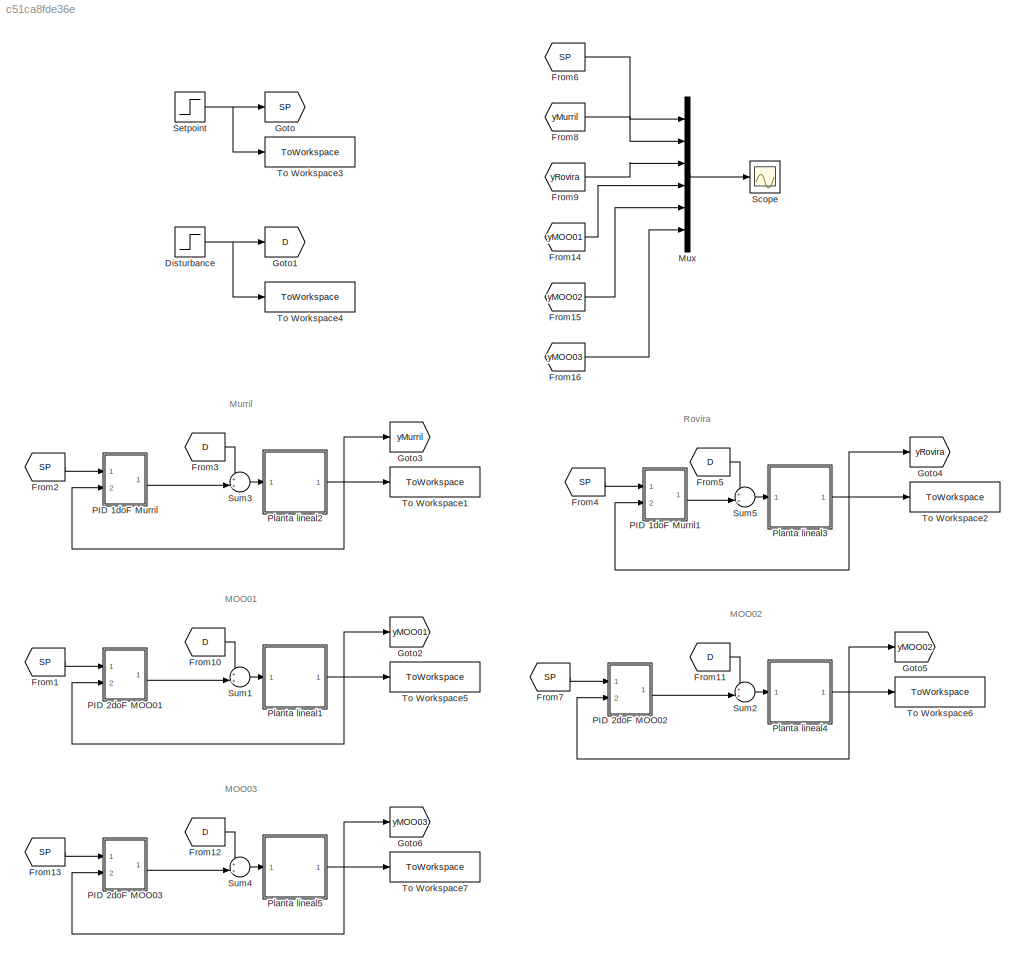
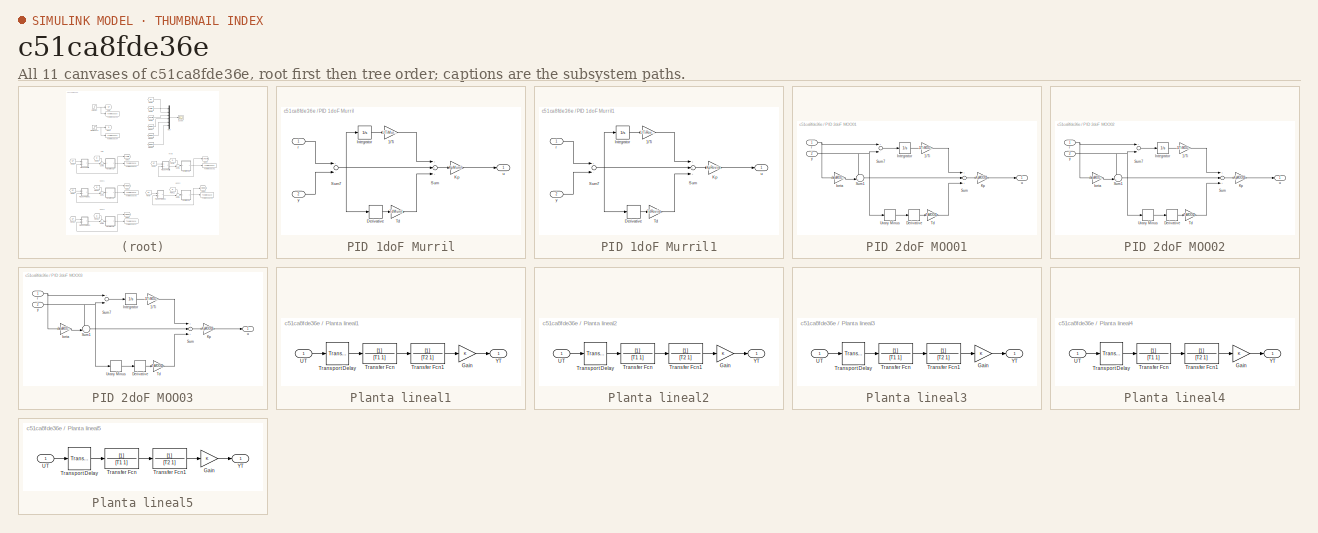
[diagram: thumbnail index - all 11 canvases of the model, root first then tree order]
MODEL slx_c51ca8fde36e
KIND model
CONFIG AbsTol = auto
CONFIG EnableMultiTasking = off
CONFIG FixedStep = 0.01
CONFIG MaxStep = 0.01
CONFIG MinStep = auto
CONFIG RelTol = 1e-3
CONFIG SampleTimeConstraint = Unconstrained
CONFIG Solver = ode4
CONFIG SolverName = ode4
CONFIG StartTime = 0.0
CONFIG StopTime = 2000
BLOCK [Step] Disturbance
  SampleTime = 0
  Time = 1000
BLOCK [From] From1
  GotoTag = SP
BLOCK [From] From10
  GotoTag = D
BLOCK [From] From11
  GotoTag = D
BLOCK [From] From12
  GotoTag = D
BLOCK [From] From13
  GotoTag = SP
BLOCK [From] From14
  GotoTag = yMOO01
BLOCK [From] From15
  GotoTag = yMOO02
BLOCK [From] From16
  GotoTag = yMOO03
BLOCK [From] From2
  GotoTag = SP
BLOCK [From] From3
  GotoTag = D
BLOCK [From] From4
  GotoTag = SP
BLOCK [From] From5
  GotoTag = D
BLOCK [From] From6
  GotoTag = SP
BLOCK [From] From7
  GotoTag = SP
BLOCK [From] From8
  GotoTag = yMurril
BLOCK [From] From9
  GotoTag = yRovira
BLOCK [Goto] Goto
  GotoTag = SP
BLOCK [Goto] Goto1
  GotoTag = D
BLOCK [Goto] Goto2
  GotoTag = yMOO01
BLOCK [Goto] Goto3
  GotoTag = yMurril
BLOCK [Goto] Goto4
  GotoTag = yRovira
BLOCK [Goto] Goto5
  GotoTag = yMOO02
BLOCK [Goto] Goto6
  GotoTag = yMOO03
BLOCK [Mux] Mux
  DisplayOption = bar
  Inputs = 6
  Ports = [6, 1]
BLOCK [SubSystem] PID 1doF Murril
  Ports = [2, 1]
  RequestExecContextInheritance = off
BLOCK [Gain] PID 1doF Murril/1//Ti
  Gain = 1/TiMurril
  OutDataTypeStr = Inherit: Inherit via internal rule
  ParamDataTypeStr = Inherit: Inherit via internal rule
  SaturateOnIntegerOverflow = off
BLOCK [Derivative] PID 1doF Murril/Derivative
BLOCK [Integrator] PID 1doF Murril/Integrator
  Ports = [1, 1]
BLOCK [Gain] PID 1doF Murril/Kp
  Gain = KpMurril
  OutDataTypeStr = Inherit: Inherit via internal rule
  ParamDataTypeStr = Inherit: Inherit via internal rule
  SaturateOnIntegerOverflow = off
BLOCK [Sum] PID 1doF Murril/Sum
  InputSameDT = off
  Inputs = +++
  OutDataTypeStr = Inherit: Inherit via internal rule
  Ports = [3, 1]
  SaturateOnIntegerOverflow = off
BLOCK [Sum] PID 1doF Murril/Sum7
  InputSameDT = off
  Inputs = +-
  OutDataTypeStr = Inherit: Inherit via internal rule
  Ports = [2, 1]
  SaturateOnIntegerOverflow = off
BLOCK [Gain] PID 1doF Murril/Td
  Gain = TdMurril
  OutDataTypeStr = Inherit: Inherit via internal rule
  ParamDataTypeStr = Inherit: Inherit via internal rule
  SaturateOnIntegerOverflow = off
BLOCK [Inport] PID 1doF Murril/r
  IconDisplay = Port number
BLOCK [Outport] PID 1doF Murril/u
  IconDisplay = Port number
BLOCK [Inport] PID 1doF Murril/y
  IconDisplay = Port number
  Port = 2
BLOCK [SubSystem] PID 1doF Murril1
  Ports = [2, 1]
  RequestExecContextInheritance = off
BLOCK [Gain] PID 1doF Murril1/1//Ti
  Gain = 1/TiRovira
  OutDataTypeStr = Inherit: Inherit via internal rule
  ParamDataTypeStr = Inherit: Inherit via internal rule
  SaturateOnIntegerOverflow = off
BLOCK [Derivative] PID 1doF Murril1/Derivative
BLOCK [Integrator] PID 1doF Murril1/Integrator
  Ports = [1, 1]
BLOCK [Gain] PID 1doF Murril1/Kp
  Gain = KpRovira
  OutDataTypeStr = Inherit: Inherit via internal rule
  ParamDataTypeStr = Inherit: Inherit via internal rule
  SaturateOnIntegerOverflow = off
BLOCK [Sum] PID 1doF Murril1/Sum
  InputSameDT = off
  Inputs = +++
  OutDataTypeStr = Inherit: Inherit via internal rule
  Ports = [3, 1]
  SaturateOnIntegerOverflow = off
BLOCK [Sum] PID 1doF Murril1/Sum7
  InputSameDT = off
  Inputs = +-
  OutDataTypeStr = Inherit: Inherit via internal rule
  Ports = [2, 1]
  SaturateOnIntegerOverflow = off
BLOCK [Gain] PID 1doF Murril1/Td
  Gain = TdRovira
  OutDataTypeStr = Inherit: Inherit via internal rule
  ParamDataTypeStr = Inherit: Inherit via internal rule
  SaturateOnIntegerOverflow = off
BLOCK [Inport] PID 1doF Murril1/r
  IconDisplay = Port number
BLOCK [Outport] PID 1doF Murril1/u
  IconDisplay = Port number
BLOCK [Inport] PID 1doF Murril1/y
  IconDisplay = Port number
  Port = 2
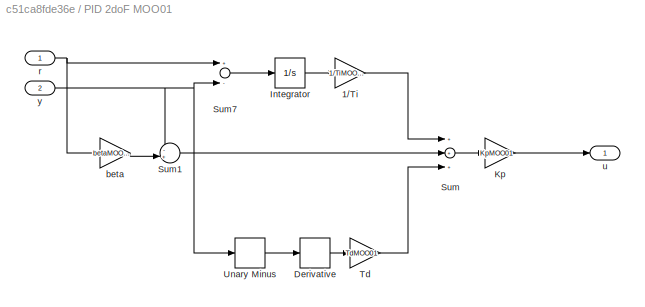
BLOCK [SubSystem] PID 2doF MOO01
  Ports = [2, 1]
  RequestExecContextInheritance = off
BLOCK [Gain] PID 2doF MOO01/1//Ti
  Gain = 1/TiMOO01
  OutDataTypeStr = Inherit: Inherit via internal rule
  ParamDataTypeStr = Inherit: Inherit via internal rule
  SaturateOnIntegerOverflow = off
BLOCK [Derivative] PID 2doF MOO01/Derivative
BLOCK [Integrator] PID 2doF MOO01/Integrator
  Ports = [1, 1]
BLOCK [Gain] PID 2doF MOO01/Kp
  Gain = KpMOO01
  OutDataTypeStr = Inherit: Inherit via internal rule
  ParamDataTypeStr = Inherit: Inherit via internal rule
  SaturateOnIntegerOverflow = off
BLOCK [Sum] PID 2doF MOO01/Sum
  InputSameDT = off
  Inputs = +++
  OutDataTypeStr = Inherit: Inherit via internal rule
  Ports = [3, 1]
  SaturateOnIntegerOverflow = off
BLOCK [Sum] PID 2doF MOO01/Sum1
  IconShape = round
  InputSameDT = off
  Inputs = -+|
  OutDataTypeStr = Inherit: Inherit via internal rule
  Ports = [2, 1]
  SaturateOnIntegerOverflow = off
BLOCK [Sum] PID 2doF MOO01/Sum7
  InputSameDT = off
  Inputs = +-
  OutDataTypeStr = Inherit: Inherit via internal rule
  Ports = [2, 1]
  SaturateOnIntegerOverflow = off
BLOCK [Gain] PID 2doF MOO01/Td
  Gain = TdMOO01
  OutDataTypeStr = Inherit: Inherit via internal rule
  ParamDataTypeStr = Inherit: Inherit via internal rule
  SaturateOnIntegerOverflow = off
BLOCK [UnaryMinus] PID 2doF MOO01/Unary Minus
BLOCK [Gain] PID 2doF MOO01/beta
  Gain = betaMOO01
  OutDataTypeStr = Inherit: Inherit via internal rule
  ParamDataTypeStr = Inherit: Inherit via internal rule
  SaturateOnIntegerOverflow = off
BLOCK [Inport] PID 2doF MOO01/r
  IconDisplay = Port number
BLOCK [Outport] PID 2doF MOO01/u
  IconDisplay = Port number
BLOCK [Inport] PID 2doF MOO01/y
  IconDisplay = Port number
  Port = 2
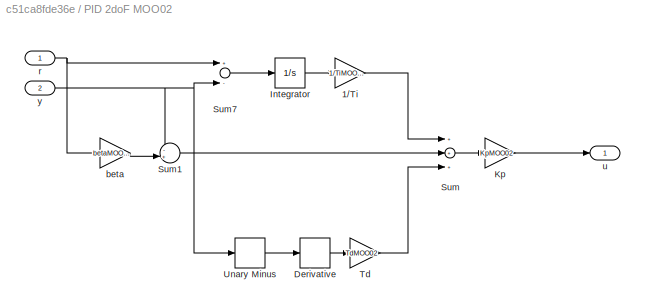
BLOCK [SubSystem] PID 2doF MOO02
  Ports = [2, 1]
  RequestExecContextInheritance = off
BLOCK [Gain] PID 2doF MOO02/1//Ti
  Gain = 1/TiMOO02
  OutDataTypeStr = Inherit: Inherit via internal rule
  ParamDataTypeStr = Inherit: Inherit via internal rule
  SaturateOnIntegerOverflow = off
BLOCK [Derivative] PID 2doF MOO02/Derivative
BLOCK [Integrator] PID 2doF MOO02/Integrator
  Ports = [1, 1]
BLOCK [Gain] PID 2doF MOO02/Kp
  Gain = KpMOO02
  OutDataTypeStr = Inherit: Inherit via internal rule
  ParamDataTypeStr = Inherit: Inherit via internal rule
  SaturateOnIntegerOverflow = off
BLOCK [Sum] PID 2doF MOO02/Sum
  InputSameDT = off
  Inputs = +++
  OutDataTypeStr = Inherit: Inherit via internal rule
  Ports = [3, 1]
  SaturateOnIntegerOverflow = off
BLOCK [Sum] PID 2doF MOO02/Sum1
  IconShape = round
  InputSameDT = off
  Inputs = -+|
  OutDataTypeStr = Inherit: Inherit via internal rule
  Ports = [2, 1]
  SaturateOnIntegerOverflow = off
BLOCK [Sum] PID 2doF MOO02/Sum7
  InputSameDT = off
  Inputs = +-
  OutDataTypeStr = Inherit: Inherit via internal rule
  Ports = [2, 1]
  SaturateOnIntegerOverflow = off
BLOCK [Gain] PID 2doF MOO02/Td
  Gain = TdMOO02
  OutDataTypeStr = Inherit: Inherit via internal rule
  ParamDataTypeStr = Inherit: Inherit via internal rule
  SaturateOnIntegerOverflow = off
BLOCK [UnaryMinus] PID 2doF MOO02/Unary Minus
BLOCK [Gain] PID 2doF MOO02/beta
  Gain = betaMOO02
  OutDataTypeStr = Inherit: Inherit via internal rule
  ParamDataTypeStr = Inherit: Inherit via internal rule
  SaturateOnIntegerOverflow = off
BLOCK [Inport] PID 2doF MOO02/r
  IconDisplay = Port number
BLOCK [Outport] PID 2doF MOO02/u
  IconDisplay = Port number
BLOCK [Inport] PID 2doF MOO02/y
  IconDisplay = Port number
  Port = 2
BLOCK [SubSystem] PID 2doF MOO03
  Ports = [2, 1]
  RequestExecContextInheritance = off
BLOCK [Gain] PID 2doF MOO03/1//Ti
  Gain = 1/TiMOO03
  OutDataTypeStr = Inherit: Inherit via internal rule
  ParamDataTypeStr = Inherit: Inherit via internal rule
  SaturateOnIntegerOverflow = off
BLOCK [Derivative] PID 2doF MOO03/Derivative
BLOCK [Integrator] PID 2doF MOO03/Integrator
  Ports = [1, 1]
BLOCK [Gain] PID 2doF MOO03/Kp
  Gain = KpMOO03
  OutDataTypeStr = Inherit: Inherit via internal rule
  ParamDataTypeStr = Inherit: Inherit via internal rule
  SaturateOnIntegerOverflow = off
BLOCK [Sum] PID 2doF MOO03/Sum
  InputSameDT = off
  Inputs = +++
  OutDataTypeStr = Inherit: Inherit via internal rule
  Ports = [3, 1]
  SaturateOnIntegerOverflow = off
BLOCK [Sum] PID 2doF MOO03/Sum1
  IconShape = round
  InputSameDT = off
  Inputs = -+|
  OutDataTypeStr = Inherit: Inherit via internal rule
  Ports = [2, 1]
  SaturateOnIntegerOverflow = off
BLOCK [Sum] PID 2doF MOO03/Sum7
  InputSameDT = off
  Inputs = +-
  OutDataTypeStr = Inherit: Inherit via internal rule
  Ports = [2, 1]
  SaturateOnIntegerOverflow = off
BLOCK [Gain] PID 2doF MOO03/Td
  Gain = TdMOO03
  OutDataTypeStr = Inherit: Inherit via internal rule
  ParamDataTypeStr = Inherit: Inherit via internal rule
  SaturateOnIntegerOverflow = off
BLOCK [UnaryMinus] PID 2doF MOO03/Unary Minus
BLOCK [Gain] PID 2doF MOO03/beta
  Gain = betaMOO03
  OutDataTypeStr = Inherit: Inherit via internal rule
  ParamDataTypeStr = Inherit: Inherit via internal rule
  SaturateOnIntegerOverflow = off
BLOCK [Inport] PID 2doF MOO03/r
  IconDisplay = Port number
BLOCK [Outport] PID 2doF MOO03/u
  IconDisplay = Port number
BLOCK [Inport] PID 2doF MOO03/y
  IconDisplay = Port number
  Port = 2
BLOCK [SubSystem] Planta lineal1
  Ports = [1, 1]
  RequestExecContextInheritance = off
BLOCK [Gain] Planta lineal1/Gain
  Gain = K
  OutDataTypeStr = Inherit: Inherit via internal rule
  ParamDataTypeStr = Inherit: Inherit via internal rule
  SaturateOnIntegerOverflow = off
BLOCK [TransferFcn] Planta lineal1/Transfer Fcn
  Denominator = [T1 1]
BLOCK [TransferFcn] Planta lineal1/Transfer Fcn1
  Denominator = [T2 1]
BLOCK [TransportDelay] Planta lineal1/Transport Delay
  BufferSize = 4096
  DelayTime = L
  Ports = [1, 1]
BLOCK [Inport] Planta lineal1/UT
  IconDisplay = Port number
BLOCK [Outport] Planta lineal1/YT
  IconDisplay = Port number
BLOCK [SubSystem] Planta lineal2
  Ports = [1, 1]
  RequestExecContextInheritance = off
BLOCK [Gain] Planta lineal2/Gain
  Gain = K
  OutDataTypeStr = Inherit: Inherit via internal rule
  ParamDataTypeStr = Inherit: Inherit via internal rule
  SaturateOnIntegerOverflow = off
BLOCK [TransferFcn] Planta lineal2/Transfer Fcn
  Denominator = [T1 1]
BLOCK [TransferFcn] Planta lineal2/Transfer Fcn1
  Denominator = [T2 1]
BLOCK [TransportDelay] Planta lineal2/Transport Delay
  BufferSize = 4096
  DelayTime = L
  Ports = [1, 1]
BLOCK [Inport] Planta lineal2/UT
  IconDisplay = Port number
BLOCK [Outport] Planta lineal2/YT
  IconDisplay = Port number
BLOCK [SubSystem] Planta lineal3
  Ports = [1, 1]
  RequestExecContextInheritance = off
BLOCK [Gain] Planta lineal3/Gain
  Gain = K
  OutDataTypeStr = Inherit: Inherit via internal rule
  ParamDataTypeStr = Inherit: Inherit via internal rule
  SaturateOnIntegerOverflow = off
BLOCK [TransferFcn] Planta lineal3/Transfer Fcn
  Denominator = [T1 1]
BLOCK [TransferFcn] Planta lineal3/Transfer Fcn1
  Denominator = [T2 1]
BLOCK [TransportDelay] Planta lineal3/Transport Delay
  BufferSize = 4096
  DelayTime = L
  Ports = [1, 1]
BLOCK [Inport] Planta lineal3/UT
  IconDisplay = Port number
BLOCK [Outport] Planta lineal3/YT
  IconDisplay = Port number
BLOCK [SubSystem] Planta lineal4
  Ports = [1, 1]
  RequestExecContextInheritance = off
BLOCK [Gain] Planta lineal4/Gain
  Gain = K
  OutDataTypeStr = Inherit: Inherit via internal rule
  ParamDataTypeStr = Inherit: Inherit via internal rule
  SaturateOnIntegerOverflow = off
BLOCK [TransferFcn] Planta lineal4/Transfer Fcn
  Denominator = [T1 1]
BLOCK [TransferFcn] Planta lineal4/Transfer Fcn1
  Denominator = [T2 1]
BLOCK [TransportDelay] Planta lineal4/Transport Delay
  BufferSize = 4096
  DelayTime = L
  Ports = [1, 1]
BLOCK [Inport] Planta lineal4/UT
  IconDisplay = Port number
BLOCK [Outport] Planta lineal4/YT
  IconDisplay = Port number
BLOCK [SubSystem] Planta lineal5
  Ports = [1, 1]
  RequestExecContextInheritance = off
BLOCK [Gain] Planta lineal5/Gain
  Gain = K
  OutDataTypeStr = Inherit: Inherit via internal rule
  ParamDataTypeStr = Inherit: Inherit via internal rule
  SaturateOnIntegerOverflow = off
BLOCK [TransferFcn] Planta lineal5/Transfer Fcn
  Denominator = [T1 1]
BLOCK [TransferFcn] Planta lineal5/Transfer Fcn1
  Denominator = [T2 1]
BLOCK [TransportDelay] Planta lineal5/Transport Delay
  BufferSize = 4096
  DelayTime = L
  Ports = [1, 1]
BLOCK [Inport] Planta lineal5/UT
  IconDisplay = Port number
BLOCK [Outport] Planta lineal5/YT
  IconDisplay = Port number
BLOCK [Scope] Scope
  Floating = off
  NumInputPorts = 1
  Ports = [1]
  ScopeSpecificationString = Simulink.scopes.TimeScopeBlockCfg('CurrentConfiguration', extmgr.ConfigurationSet(extmgr.Configuration('Core','General UI',true),extmgr.Configuration('Core','Source UI',true),extmgr.Configuration('Sources','WiredSimulink',true),extmgr.Configuration('Visuals','Time Domain',true,'SerializedDisplays',{struct('MinYLimReal','-0.04524','MaxYLimReal','0.17055','YLabelReal','','MinYLimMag','0.00000','MaxY...<+1464ch>
BLOCK [Step] Setpoint
  SampleTime = 0
  Time = 10
BLOCK [Sum] Sum1
  IconShape = round
  InputSameDT = off
  Inputs = ++|
  OutDataTypeStr = Inherit: Inherit via internal rule
  Ports = [2, 1]
  SaturateOnIntegerOverflow = off
BLOCK [Sum] Sum2
  IconShape = round
  InputSameDT = off
  Inputs = ++|
  OutDataTypeStr = Inherit: Inherit via internal rule
  Ports = [2, 1]
  SaturateOnIntegerOverflow = off
BLOCK [Sum] Sum3
  IconShape = round
  InputSameDT = off
  Inputs = ++|
  OutDataTypeStr = Inherit: Inherit via internal rule
  Ports = [2, 1]
  SaturateOnIntegerOverflow = off
BLOCK [Sum] Sum4
  IconShape = round
  InputSameDT = off
  Inputs = ++|
  OutDataTypeStr = Inherit: Inherit via internal rule
  Ports = [2, 1]
  SaturateOnIntegerOverflow = off
BLOCK [Sum] Sum5
  IconShape = round
  InputSameDT = off
  Inputs = ++|
  OutDataTypeStr = Inherit: Inherit via internal rule
  Ports = [2, 1]
  SaturateOnIntegerOverflow = off
BLOCK [ToWorkspace] To Workspace1
  FixptAsFi = on
  MaxDataPoints = inf
  Ports = [1]
  SampleTime = 0.01
  SaveFormat = Timeseries
  VariableName = Murril
BLOCK [ToWorkspace] To Workspace2
  FixptAsFi = on
  MaxDataPoints = inf
  Ports = [1]
  SampleTime = -1
  SaveFormat = Timeseries
  VariableName = Rovira
BLOCK [ToWorkspace] To Workspace3
  FixptAsFi = on
  MaxDataPoints = inf
  Ports = [1]
  SampleTime = 0.01
  SaveFormat = Timeseries
  VariableName = SP
BLOCK [ToWorkspace] To Workspace4
  FixptAsFi = on
  MaxDataPoints = inf
  Ports = [1]
  SampleTime = 0.01
  SaveFormat = Timeseries
  VariableName = D
BLOCK [ToWorkspace] To Workspace5
  FixptAsFi = on
  MaxDataPoints = inf
  Ports = [1]
  SampleTime = 0.01
  SaveFormat = Timeseries
  VariableName = MOO011
BLOCK [ToWorkspace] To Workspace6
  FixptAsFi = on
  MaxDataPoints = inf
  Ports = [1]
  SampleTime = 0.01
  SaveFormat = Timeseries
  VariableName = MOO02
BLOCK [ToWorkspace] To Workspace7
  FixptAsFi = on
  MaxDataPoints = inf
  Ports = [1]
  SampleTime = 0.01
  SaveFormat = Timeseries
  VariableName = MOO03
ANNOTATION (root): Murril
ANNOTATION (root): Rovira
ANNOTATION (root): MOO01
ANNOTATION (root): MOO02
ANNOTATION (root): MOO03
NET Disturbance:1 -> Goto1:1, To Workspace4:1
LINE From10:1 -> Sum1:1
LINE From11:1 -> Sum2:1
LINE From12:1 -> Sum4:1
LINE From13:1 -> PID 2doF MOO03:1
LINE From14:1 -> Mux:4
LINE From15:1 -> Mux:5
LINE From16:1 -> Mux:6
LINE From1:1 -> PID 2doF MOO01:1
LINE From2:1 -> PID 1doF Murril:1
LINE From3:1 -> Sum3:1
LINE From4:1 -> PID 1doF Murril1:1
LINE From5:1 -> Sum5:1
LINE From6:1 -> Mux:1
LINE From7:1 -> PID 2doF MOO02:1
LINE From8:1 -> Mux:2
LINE From9:1 -> Mux:3
LINE Mux:1 -> Scope:1
LINE PID 1doF Murril/1//Ti:1 -> PID 1doF Murril/Sum:1
LINE PID 1doF Murril/Derivative:1 -> PID 1doF Murril/Td:1
LINE PID 1doF Murril/Integrator:1 -> PID 1doF Murril/1//Ti:1
LINE PID 1doF Murril/Kp:1 -> PID 1doF Murril/u:1
NET PID 1doF Murril/Sum7:1 -> PID 1doF Murril/Derivative:1, PID 1doF Murril/Integrator:1, PID 1doF Murril/Sum:2
LINE PID 1doF Murril/Sum:1 -> PID 1doF Murril/Kp:1
LINE PID 1doF Murril/Td:1 -> PID 1doF Murril/Sum:3
LINE PID 1doF Murril/r:1 -> PID 1doF Murril/Sum7:1
LINE PID 1doF Murril/y:1 -> PID 1doF Murril/Sum7:2
LINE PID 1doF Murril1/1//Ti:1 -> PID 1doF Murril1/Sum:1
LINE PID 1doF Murril1/Derivative:1 -> PID 1doF Murril1/Td:1
LINE PID 1doF Murril1/Integrator:1 -> PID 1doF Murril1/1//Ti:1
LINE PID 1doF Murril1/Kp:1 -> PID 1doF Murril1/u:1
NET PID 1doF Murril1/Sum7:1 -> PID 1doF Murril1/Derivative:1, PID 1doF Murril1/Integrator:1, PID 1doF Murril1/Sum:2
LINE PID 1doF Murril1/Sum:1 -> PID 1doF Murril1/Kp:1
LINE PID 1doF Murril1/Td:1 -> PID 1doF Murril1/Sum:3
LINE PID 1doF Murril1/r:1 -> PID 1doF Murril1/Sum7:1
LINE PID 1doF Murril1/y:1 -> PID 1doF Murril1/Sum7:2
LINE PID 1doF Murril1:1 -> Sum5:2
LINE PID 1doF Murril:1 -> Sum3:2
LINE PID 2doF MOO01/1//Ti:1 -> PID 2doF MOO01/Sum:1
LINE PID 2doF MOO01/Derivative:1 -> PID 2doF MOO01/Td:1
LINE PID 2doF MOO01/Integrator:1 -> PID 2doF MOO01/1//Ti:1
LINE PID 2doF MOO01/Kp:1 -> PID 2doF MOO01/u:1
LINE PID 2doF MOO01/Sum1:1 -> PID 2doF MOO01/Sum:2
LINE PID 2doF MOO01/Sum7:1 -> PID 2doF MOO01/Integrator:1
LINE PID 2doF MOO01/Sum:1 -> PID 2doF MOO01/Kp:1
LINE PID 2doF MOO01/Td:1 -> PID 2doF MOO01/Sum:3
LINE PID 2doF MOO01/Unary Minus:1 -> PID 2doF MOO01/Derivative:1
LINE PID 2doF MOO01/beta:1 -> PID 2doF MOO01/Sum1:2
NET PID 2doF MOO01/r:1 -> PID 2doF MOO01/Sum7:1, PID 2doF MOO01/beta:1
NET PID 2doF MOO01/y:1 -> PID 2doF MOO01/Sum1:1, PID 2doF MOO01/Sum7:2, PID 2doF MOO01/Unary Minus:1
LINE PID 2doF MOO01:1 -> Sum1:2
LINE PID 2doF MOO02/1//Ti:1 -> PID 2doF MOO02/Sum:1
LINE PID 2doF MOO02/Derivative:1 -> PID 2doF MOO02/Td:1
LINE PID 2doF MOO02/Integrator:1 -> PID 2doF MOO02/1//Ti:1
LINE PID 2doF MOO02/Kp:1 -> PID 2doF MOO02/u:1
LINE PID 2doF MOO02/Sum1:1 -> PID 2doF MOO02/Sum:2
LINE PID 2doF MOO02/Sum7:1 -> PID 2doF MOO02/Integrator:1
LINE PID 2doF MOO02/Sum:1 -> PID 2doF MOO02/Kp:1
LINE PID 2doF MOO02/Td:1 -> PID 2doF MOO02/Sum:3
LINE PID 2doF MOO02/Unary Minus:1 -> PID 2doF MOO02/Derivative:1
LINE PID 2doF MOO02/beta:1 -> PID 2doF MOO02/Sum1:2
NET PID 2doF MOO02/r:1 -> PID 2doF MOO02/Sum7:1, PID 2doF MOO02/beta:1
NET PID 2doF MOO02/y:1 -> PID 2doF MOO02/Sum1:1, PID 2doF MOO02/Sum7:2, PID 2doF MOO02/Unary Minus:1
LINE PID 2doF MOO02:1 -> Sum2:2
LINE PID 2doF MOO03/1//Ti:1 -> PID 2doF MOO03/Sum:1
LINE PID 2doF MOO03/Derivative:1 -> PID 2doF MOO03/Td:1
LINE PID 2doF MOO03/Integrator:1 -> PID 2doF MOO03/1//Ti:1
LINE PID 2doF MOO03/Kp:1 -> PID 2doF MOO03/u:1
LINE PID 2doF MOO03/Sum1:1 -> PID 2doF MOO03/Sum:2
LINE PID 2doF MOO03/Sum7:1 -> PID 2doF MOO03/Integrator:1
LINE PID 2doF MOO03/Sum:1 -> PID 2doF MOO03/Kp:1
LINE PID 2doF MOO03/Td:1 -> PID 2doF MOO03/Sum:3
LINE PID 2doF MOO03/Unary Minus:1 -> PID 2doF MOO03/Derivative:1
LINE PID 2doF MOO03/beta:1 -> PID 2doF MOO03/Sum1:2
NET PID 2doF MOO03/r:1 -> PID 2doF MOO03/Sum7:1, PID 2doF MOO03/beta:1
NET PID 2doF MOO03/y:1 -> PID 2doF MOO03/Sum1:1, PID 2doF MOO03/Sum7:2, PID 2doF MOO03/Unary Minus:1
LINE PID 2doF MOO03:1 -> Sum4:2
LINE Planta lineal1/Gain:1 -> Planta lineal1/YT:1
LINE Planta lineal1/Transfer Fcn1:1 -> Planta lineal1/Gain:1
LINE Planta lineal1/Transfer Fcn:1 -> Planta lineal1/Transfer Fcn1:1
LINE Planta lineal1/Transport Delay:1 -> Planta lineal1/Transfer Fcn:1
LINE Planta lineal1/UT:1 -> Planta lineal1/Transport Delay:1
NET Planta lineal1:1 -> Goto2:1, PID 2doF MOO01:2, To Workspace5:1
LINE Planta lineal2/Gain:1 -> Planta lineal2/YT:1
LINE Planta lineal2/Transfer Fcn1:1 -> Planta lineal2/Gain:1
LINE Planta lineal2/Transfer Fcn:1 -> Planta lineal2/Transfer Fcn1:1
LINE Planta lineal2/Transport Delay:1 -> Planta lineal2/Transfer Fcn:1
LINE Planta lineal2/UT:1 -> Planta lineal2/Transport Delay:1
NET Planta lineal2:1 -> Goto3:1, PID 1doF Murril:2, To Workspace1:1
LINE Planta lineal3/Gain:1 -> Planta lineal3/YT:1
LINE Planta lineal3/Transfer Fcn1:1 -> Planta lineal3/Gain:1
LINE Planta lineal3/Transfer Fcn:1 -> Planta lineal3/Transfer Fcn1:1
LINE Planta lineal3/Transport Delay:1 -> Planta lineal3/Transfer Fcn:1
LINE Planta lineal3/UT:1 -> Planta lineal3/Transport Delay:1
NET Planta lineal3:1 -> Goto4:1, PID 1doF Murril1:2, To Workspace2:1
LINE Planta lineal4/Gain:1 -> Planta lineal4/YT:1
LINE Planta lineal4/Transfer Fcn1:1 -> Planta lineal4/Gain:1
LINE Planta lineal4/Transfer Fcn:1 -> Planta lineal4/Transfer Fcn1:1
LINE Planta lineal4/Transport Delay:1 -> Planta lineal4/Transfer Fcn:1
LINE Planta lineal4/UT:1 -> Planta lineal4/Transport Delay:1
NET Planta lineal4:1 -> Goto5:1, PID 2doF MOO02:2, To Workspace6:1
LINE Planta lineal5/Gain:1 -> Planta lineal5/YT:1
LINE Planta lineal5/Transfer Fcn1:1 -> Planta lineal5/Gain:1
LINE Planta lineal5/Transfer Fcn:1 -> Planta lineal5/Transfer Fcn1:1
LINE Planta lineal5/Transport Delay:1 -> Planta lineal5/Transfer Fcn:1
LINE Planta lineal5/UT:1 -> Planta lineal5/Transport Delay:1
NET Planta lineal5:1 -> Goto6:1, PID 2doF MOO03:2, To Workspace7:1
NET Setpoint:1 -> Goto:1, To Workspace3:1
LINE Sum1:1 -> Planta lineal1:1
LINE Sum2:1 -> Planta lineal4:1
LINE Sum3:1 -> Planta lineal2:1
LINE Sum4:1 -> Planta lineal5:1
LINE Sum5:1 -> Planta lineal3:1
note: NET lines group one-source signal fan-out (src -> all destinations, sorted); 1:1 wires keep LINE
